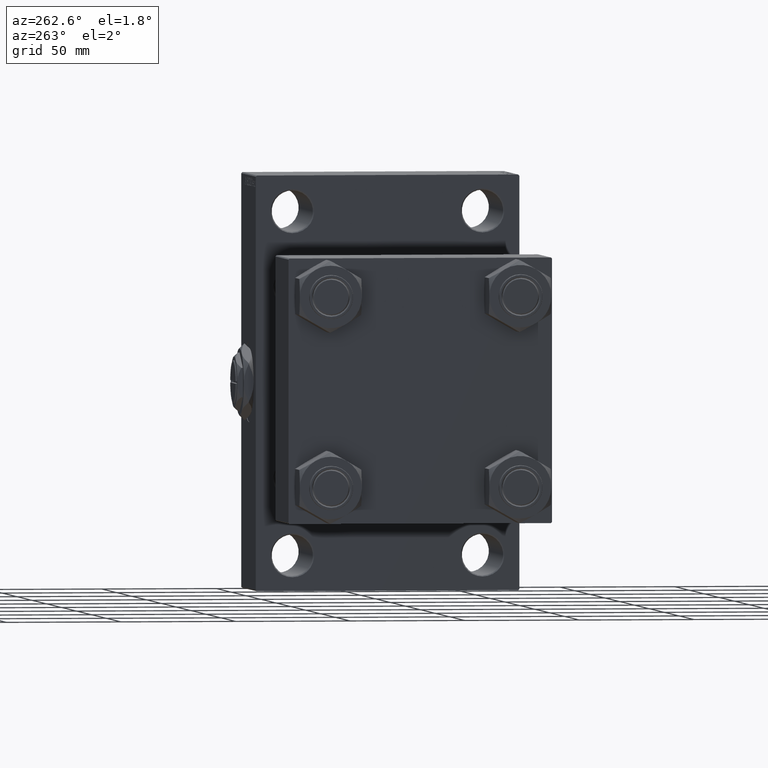
[diagram: clean part render]
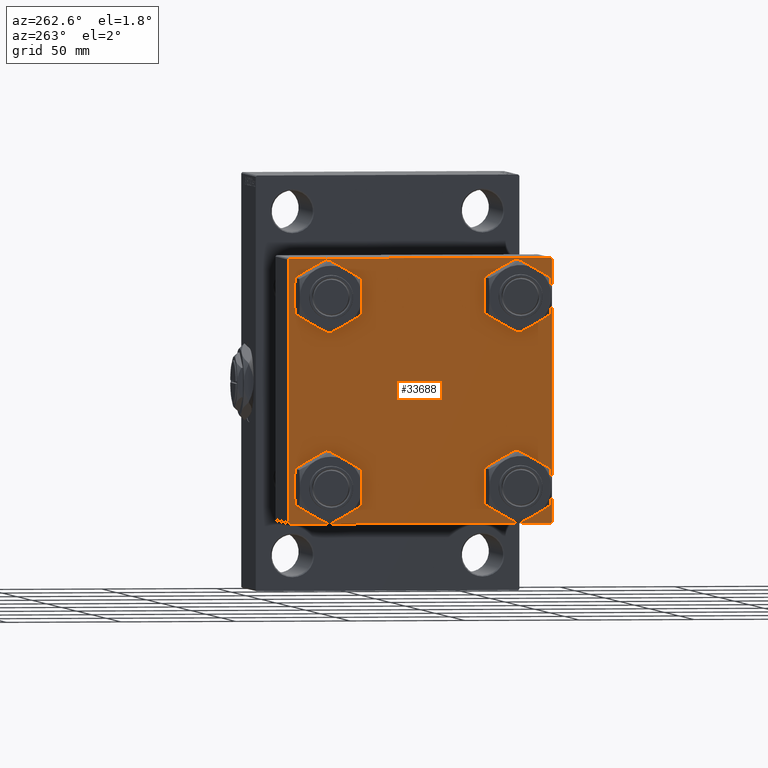
[diagram: same view with one face highlighted and labeled with its STEP entity id]
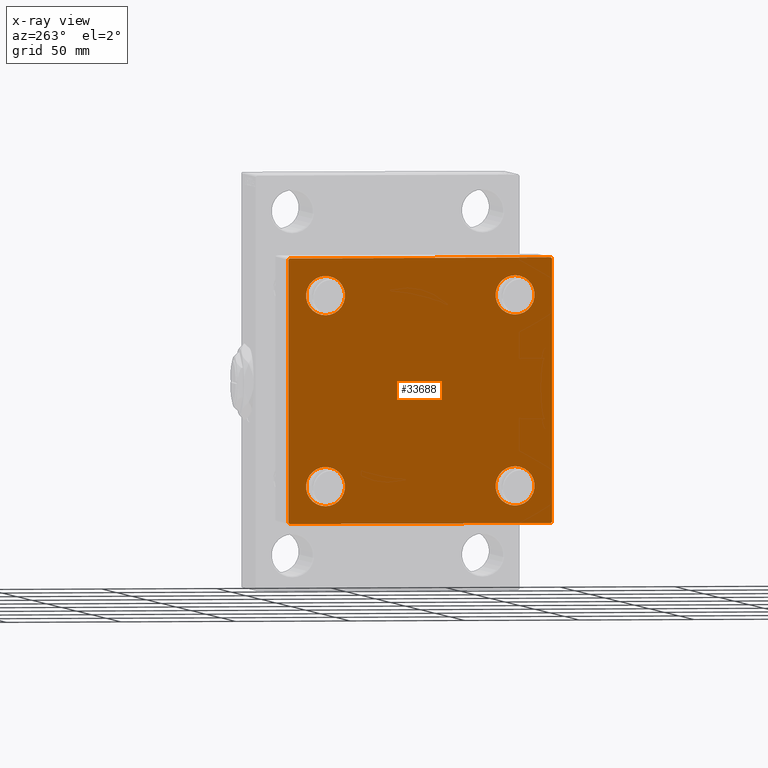
[diagram: x-ray of the same camera — body ghosted, the highlighted face saturated]
A machine part, auxiliary view. The second image highlights one B-rep face of the part: STEP entity #33688.
The next image is the same camera in x-ray: the body ghosted, the highlighted face saturated — about 0% of this face is hidden behind the body in this view.
In plain terms, the highlighted planar face has unit normal (-1, 0, 0).
Its self-contained STEP definition (entity closure, byte-faithful):
#439 = DIRECTION ( 'NONE',  ( 1.000000000000000000, -0.000000000000000000, 0.000000000000000000 ) ) ;
#1377 = CARTESIAN_POINT ( 'NONE',  ( 0.000000000000000000, 57.00000000000002842, -57.49999999999999289 ) ) ;
#1626 = ORIENTED_EDGE ( 'NONE', *, *, #36091, .T. ) ;
#1731 = CARTESIAN_POINT ( 'NONE',  ( 0.000000000000000000, 57.25000000000119371, -57.24999999999880629 ) ) ;
#2276 = LINE ( 'NONE', #44262, #36789 ) ;
#2485 = FACE_BOUND ( 'NONE', #11521, .T. ) ;
#2706 = VERTEX_POINT ( 'NONE', #38894 ) ;
#2807 = VERTEX_POINT ( 'NONE', #9567 ) ;
#2897 = VECTOR ( 'NONE', #33966, 1000.000000000000000 ) ;
#3137 = VERTEX_POINT ( 'NONE', #24148 ) ;
#3410 = LINE ( 'NONE', #11360, #2897 ) ;
#3433 = VERTEX_POINT ( 'NONE', #1377 ) ;
#3969 = VECTOR ( 'NONE', #45736, 1000.000000000000000 ) ;
#4084 = CIRCLE ( 'NONE', #7270, 8.499999999999992895 ) ;
#4239 = CARTESIAN_POINT ( 'NONE',  ( 0.000000000000000000, 57.50000000000000000, 57.50000000000001421 ) ) ;
#4900 = DIRECTION ( 'NONE',  ( 1.000000000000000000, -0.000000000000000000, 0.000000000000000000 ) ) ;
#5206 = CIRCLE ( 'NONE', #25017, 8.499999999999992895 ) ;
#5609 = DIRECTION ( 'NONE',  ( 0.000000000000000000, 0.000000000000000000, 1.000000000000000000 ) ) ;
#6015 = CARTESIAN_POINT ( 'NONE',  ( 0.000000000000000000, -41.34999999999998721, -41.35000000000000142 ) ) ;
#6059 = AXIS2_PLACEMENT_3D ( 'NONE', #29647, #48562, #22683 ) ;
#6208 = ORIENTED_EDGE ( 'NONE', *, *, #6908, .T. ) ;
#6639 = EDGE_CURVE ( 'NONE', #3433, #23251, #2276, .T. ) ;
#6908 = EDGE_CURVE ( 'NONE', #23251, #37828, #11208, .T. ) ;
#7270 = AXIS2_PLACEMENT_3D ( 'NONE', #45912, #439, #38211 ) ;
#7371 = CARTESIAN_POINT ( 'NONE',  ( 0.000000000000000000, -57.50000000000000000, 56.99999999999997868 ) ) ;
#8075 = DIRECTION ( 'NONE',  ( 0.000000000000000000, 0.000000000000000000, 1.000000000000000000 ) ) ;
#8151 = EDGE_LOOP ( 'NONE', ( #30617, #32737, #42858, #6208, #31839, #45591, #14212, #11554 ) ) ;
#8357 = VECTOR ( 'NONE', #39044, 1000.000000000000114 ) ;
#9567 = CARTESIAN_POINT ( 'NONE',  ( 0.000000000000000000, -41.34999999999998721, -49.85000000000000142 ) ) ;
#9705 = DIRECTION ( 'NONE',  ( -0.000000000000000000, 0.000000000000000000, 1.000000000000000000 ) ) ;
#10638 = VERTEX_POINT ( 'NONE', #40063 ) ;
#11208 = LINE ( 'NONE', #29826, #42366 ) ;
#11359 = ORIENTED_EDGE ( 'NONE', *, *, #21328, .T. ) ;
#11360 = CARTESIAN_POINT ( 'NONE',  ( 0.000000000000000000, 57.50000000000000000, 57.50000000000001421 ) ) ;
#11485 = CARTESIAN_POINT ( 'NONE',  ( 0.000000000000000000, 41.34999999999999432, 32.85000000000000142 ) ) ;
#11521 = EDGE_LOOP ( 'NONE', ( #21041, #26578 ) ) ;
#11554 = ORIENTED_EDGE ( 'NONE', *, *, #34458, .T. ) ;
#11755 = DIRECTION ( 'NONE',  ( 0.000000000000000000, 0.000000000000000000, 1.000000000000000000 ) ) ;
#12519 = VERTEX_POINT ( 'NONE', #11485 ) ;
#13349 = VECTOR ( 'NONE', #47454, 1000.000000000000000 ) ;
#14092 = EDGE_CURVE ( 'NONE', #37888, #37828, #46073, .T. ) ;
#14119 = AXIS2_PLACEMENT_3D ( 'NONE', #23644, #42804, #11755 ) ;
#14212 = ORIENTED_EDGE ( 'NONE', *, *, #33004, .F. ) ;
#15789 = AXIS2_PLACEMENT_3D ( 'NONE', #19559, #4900, #34723 ) ;
#15893 = ORIENTED_EDGE ( 'NONE', *, *, #47160, .T. ) ;
#16029 = CARTESIAN_POINT ( 'NONE',  ( 0.000000000000000000, 41.34999999999999432, 41.34999999999999432 ) ) ;
#17361 = CIRCLE ( 'NONE', #30067, 8.499999999999992895 ) ;
#19534 = VERTEX_POINT ( 'NONE', #26743 ) ;
#19559 = CARTESIAN_POINT ( 'NONE',  ( 0.000000000000000000, -41.34999999999998721, -41.35000000000000142 ) ) ;
#19599 = CARTESIAN_POINT ( 'NONE',  ( 0.000000000000000000, 57.50000000000000000, -56.99999999999997158 ) ) ;
#20134 = AXIS2_PLACEMENT_3D ( 'NONE', #6015, #46794, #47527 ) ;
#20227 = DIRECTION ( 'NONE',  ( 1.000000000000000000, -0.000000000000000000, 0.000000000000000000 ) ) ;
#21041 = ORIENTED_EDGE ( 'NONE', *, *, #46366, .T. ) ;
#21328 = EDGE_CURVE ( 'NONE', #37139, #35429, #4084, .T. ) ;
#22004 = VERTEX_POINT ( 'NONE', #44902 ) ;
#22683 = DIRECTION ( 'NONE',  ( 0.000000000000000000, 0.000000000000000000, 1.000000000000000000 ) ) ;
#23251 = VERTEX_POINT ( 'NONE', #32428 ) ;
#23644 = CARTESIAN_POINT ( 'NONE',  ( 0.000000000000000000, -41.34999999999998721, 41.35000000000000142 ) ) ;
#23666 = DIRECTION ( 'NONE',  ( 0.000000000000000000, 6.033820786006285224E-17, -1.000000000000000000 ) ) ;
#23862 = CARTESIAN_POINT ( 'NONE',  ( 0.000000000000000000, 57.24999999999922551, 57.25000000000081712 ) ) ;
#24148 = CARTESIAN_POINT ( 'NONE',  ( 0.000000000000000000, 41.34999999999999432, -49.84999999999999432 ) ) ;
#24513 = EDGE_CURVE ( 'NONE', #41761, #12519, #30398, .T. ) ;
#25017 = AXIS2_PLACEMENT_3D ( 'NONE', #32679, #32194, #5609 ) ;
#25261 = CARTESIAN_POINT ( 'NONE',  ( 0.000000000000000000, -57.49999999999999289, -57.00000000000003553 ) ) ;
#25326 = DIRECTION ( 'NONE',  ( -1.000000000000000000, 0.000000000000000000, -0.000000000000000000 ) ) ;
#25360 = ORIENTED_EDGE ( 'NONE', *, *, #33869, .T. ) ;
#26578 = ORIENTED_EDGE ( 'NONE', *, *, #26767, .T. ) ;
#26743 = CARTESIAN_POINT ( 'NONE',  ( 0.000000000000000000, 41.34999999999999432, -32.85000000000000142 ) ) ;
#26767 = EDGE_CURVE ( 'NONE', #2807, #10638, #40743, .T. ) ;
#27304 = CARTESIAN_POINT ( 'NONE',  ( 0.000000000000000000, -41.34999999999998721, 49.85000000000000142 ) ) ;
#27622 = EDGE_LOOP ( 'NONE', ( #15893, #25360 ) ) ;
#27707 = CARTESIAN_POINT ( 'NONE',  ( -0.000000000000000000, -57.24999999999918998, 57.25000000000078160 ) ) ;
#28566 = FACE_BOUND ( 'NONE', #33511, .T. ) ;
#29056 = FACE_BOUND ( 'NONE', #43524, .T. ) ;
#29058 = AXIS2_PLACEMENT_3D ( 'NONE', #37013, #25326, #9705 ) ;
#29301 = PLANE ( 'NONE',  #29058 ) ;
#29647 = CARTESIAN_POINT ( 'NONE',  ( 0.000000000000000000, 41.34999999999999432, 41.34999999999999432 ) ) ;
#29826 = CARTESIAN_POINT ( 'NONE',  ( 0.000000000000000000, -57.24999999999962341, -57.25000000000041211 ) ) ;
#30067 = AXIS2_PLACEMENT_3D ( 'NONE', #43765, #39786, #39050 ) ;
#30398 = CIRCLE ( 'NONE', #41514, 8.499999999999992895 ) ;
#30617 = ORIENTED_EDGE ( 'NONE', *, *, #49176, .T. ) ;
#31096 = ORIENTED_EDGE ( 'NONE', *, *, #40194, .T. ) ;
#31324 = VERTEX_POINT ( 'NONE', #19599 ) ;
#31548 = CARTESIAN_POINT ( 'NONE',  ( 0.000000000000000000, 41.34999999999999432, 49.84999999999999432 ) ) ;
#31839 = ORIENTED_EDGE ( 'NONE', *, *, #14092, .F. ) ;
#31898 = CARTESIAN_POINT ( 'NONE',  ( 0.000000000000000000, 57.50000000000000000, 57.00000000000004263 ) ) ;
#32194 = DIRECTION ( 'NONE',  ( 1.000000000000000000, -0.000000000000000000, 0.000000000000000000 ) ) ;
#32277 = LINE ( 'NONE', #1731, #13349 ) ;
#32428 = CARTESIAN_POINT ( 'NONE',  ( 0.000000000000000000, -57.00000000000001421, -57.50000000000000711 ) ) ;
#32679 = CARTESIAN_POINT ( 'NONE',  ( 0.000000000000000000, 41.34999999999999432, -41.34999999999999432 ) ) ;
#32737 = ORIENTED_EDGE ( 'NONE', *, *, #40645, .T. ) ;
#33004 = EDGE_CURVE ( 'NONE', #2706, #22004, #3410, .T. ) ;
#33305 = VECTOR ( 'NONE', #23666, 1000.000000000000000 ) ;
#33511 = EDGE_LOOP ( 'NONE', ( #31096, #11359 ) ) ;
#33688 = ADVANCED_FACE ( 'NONE', ( #28566, #2485, #43750, #29056, #40256 ), #29301, .T. ) ;
#33869 = EDGE_CURVE ( 'NONE', #3137, #19534, #5206, .T. ) ;
#33966 = DIRECTION ( 'NONE',  ( 0.000000000000000000, -1.000000000000000000, -1.810146235801885567E-16 ) ) ;
#34458 = EDGE_CURVE ( 'NONE', #2706, #46770, #42777, .T. ) ;
#34549 = LINE ( 'NONE', #4239, #3969 ) ;
#34630 = CARTESIAN_POINT ( 'NONE',  ( 0.000000000000000000, -41.34999999999998721, 32.85000000000000853 ) ) ;
#34723 = DIRECTION ( 'NONE',  ( 0.000000000000000000, 0.000000000000000000, 1.000000000000000000 ) ) ;
#35429 = VERTEX_POINT ( 'NONE', #27304 ) ;
#35932 = ORIENTED_EDGE ( 'NONE', *, *, #24513, .T. ) ;
#36091 = EDGE_CURVE ( 'NONE', #12519, #41761, #44928, .T. ) ;
#36789 = VECTOR ( 'NONE', #37047, 1000.000000000000000 ) ;
#37013 = CARTESIAN_POINT ( 'NONE',  ( 0.000000000000000000, 0.000000000000000000, 0.000000000000000000 ) ) ;
#37047 = DIRECTION ( 'NONE',  ( 0.000000000000000000, -1.000000000000000000, -1.206764157201257291E-16 ) ) ;
#37139 = VERTEX_POINT ( 'NONE', #34630 ) ;
#37198 = CIRCLE ( 'NONE', #15789, 8.499999999999992895 ) ;
#37828 = VERTEX_POINT ( 'NONE', #25261 ) ;
#37888 = VERTEX_POINT ( 'NONE', #7371 ) ;
#38125 = EDGE_CURVE ( 'NONE', #37888, #22004, #47112, .T. ) ;
#38211 = DIRECTION ( 'NONE',  ( 0.000000000000000000, 0.000000000000000000, 1.000000000000000000 ) ) ;
#38894 = CARTESIAN_POINT ( 'NONE',  ( 0.000000000000000000, 57.00000000000001421, 57.50000000000001421 ) ) ;
#39044 = DIRECTION ( 'NONE',  ( 0.000000000000000000, 0.7071067811865573427, -0.7071067811865376918 ) ) ;
#39050 = DIRECTION ( 'NONE',  ( 0.000000000000000000, 0.000000000000000000, 1.000000000000000000 ) ) ;
#39786 = DIRECTION ( 'NONE',  ( 1.000000000000000000, -0.000000000000000000, 0.000000000000000000 ) ) ;
#39891 = DIRECTION ( 'NONE',  ( -0.000000000000000000, 0.7071067811865574537, 0.7071067811865376918 ) ) ;
#40063 = CARTESIAN_POINT ( 'NONE',  ( 0.000000000000000000, -41.34999999999998721, -32.85000000000000853 ) ) ;
#40194 = EDGE_CURVE ( 'NONE', #35429, #37139, #44263, .T. ) ;
#40256 = FACE_OUTER_BOUND ( 'NONE', #8151, .T. ) ;
#40645 = EDGE_CURVE ( 'NONE', #31324, #3433, #32277, .T. ) ;
#40743 = CIRCLE ( 'NONE', #20134, 8.499999999999992895 ) ;
#41514 = AXIS2_PLACEMENT_3D ( 'NONE', #16029, #20227, #8075 ) ;
#41761 = VERTEX_POINT ( 'NONE', #31548 ) ;
#41771 = DIRECTION ( 'NONE',  ( 0.000000000000000000, -0.7071067811865524577, 0.7071067811865426878 ) ) ;
#42366 = VECTOR ( 'NONE', #41771, 1000.000000000000000 ) ;
#42777 = LINE ( 'NONE', #23862, #8357 ) ;
#42804 = DIRECTION ( 'NONE',  ( 1.000000000000000000, -0.000000000000000000, 0.000000000000000000 ) ) ;
#42858 = ORIENTED_EDGE ( 'NONE', *, *, #6639, .T. ) ;
#43524 = EDGE_LOOP ( 'NONE', ( #35932, #1626 ) ) ;
#43750 = FACE_BOUND ( 'NONE', #27622, .T. ) ;
#43765 = CARTESIAN_POINT ( 'NONE',  ( 0.000000000000000000, 41.34999999999999432, -41.34999999999999432 ) ) ;
#44201 = VECTOR ( 'NONE', #39891, 999.9999999999998863 ) ;
#44262 = CARTESIAN_POINT ( 'NONE',  ( 0.000000000000000000, 57.50000000000000000, -57.49999999999999289 ) ) ;
#44263 = CIRCLE ( 'NONE', #14119, 8.499999999999992895 ) ;
#44902 = CARTESIAN_POINT ( 'NONE',  ( 0.000000000000000000, -56.99999999999997158, 57.49999999999999289 ) ) ;
#44928 = CIRCLE ( 'NONE', #6059, 8.499999999999992895 ) ;
#45591 = ORIENTED_EDGE ( 'NONE', *, *, #38125, .T. ) ;
#45736 = DIRECTION ( 'NONE',  ( 0.000000000000000000, 0.000000000000000000, -1.000000000000000000 ) ) ;
#45912 = CARTESIAN_POINT ( 'NONE',  ( 0.000000000000000000, -41.34999999999998721, 41.35000000000000142 ) ) ;
#46073 = LINE ( 'NONE', #46562, #33305 ) ;
#46366 = EDGE_CURVE ( 'NONE', #10638, #2807, #37198, .T. ) ;
#46562 = CARTESIAN_POINT ( 'NONE',  ( 0.000000000000000000, -57.50000000000000000, 57.49999999999999289 ) ) ;
#46770 = VERTEX_POINT ( 'NONE', #31898 ) ;
#46794 = DIRECTION ( 'NONE',  ( 1.000000000000000000, -0.000000000000000000, 0.000000000000000000 ) ) ;
#47112 = LINE ( 'NONE', #27707, #44201 ) ;
#47160 = EDGE_CURVE ( 'NONE', #19534, #3137, #17361, .T. ) ;
#47454 = DIRECTION ( 'NONE',  ( -0.000000000000000000, -0.7071067811865328068, -0.7071067811865622277 ) ) ;
#47527 = DIRECTION ( 'NONE',  ( 0.000000000000000000, 0.000000000000000000, 1.000000000000000000 ) ) ;
#48562 = DIRECTION ( 'NONE',  ( 1.000000000000000000, -0.000000000000000000, 0.000000000000000000 ) ) ;
#49176 = EDGE_CURVE ( 'NONE', #46770, #31324, #34549, .T. ) ;